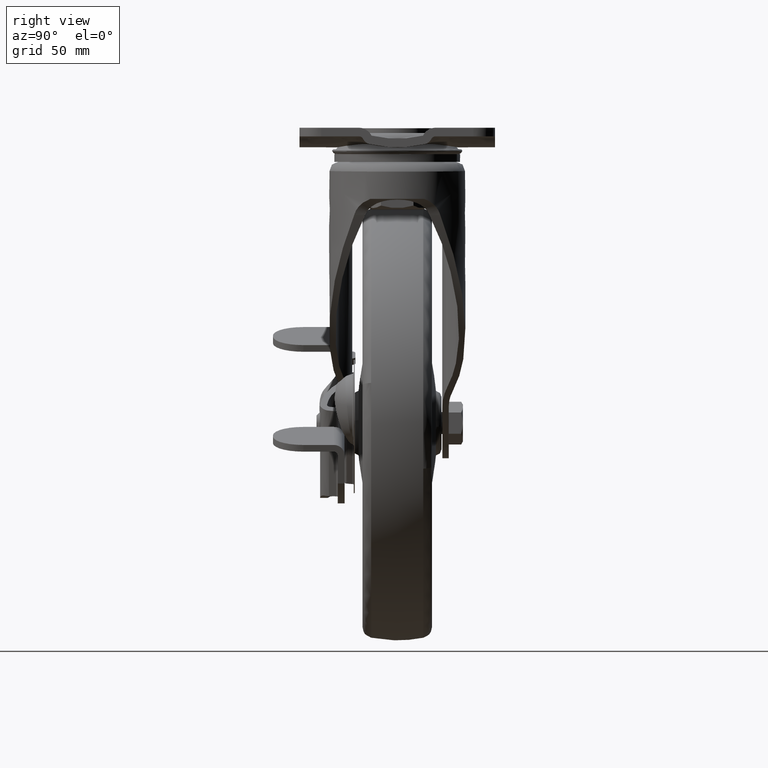
[diagram: clean part render]
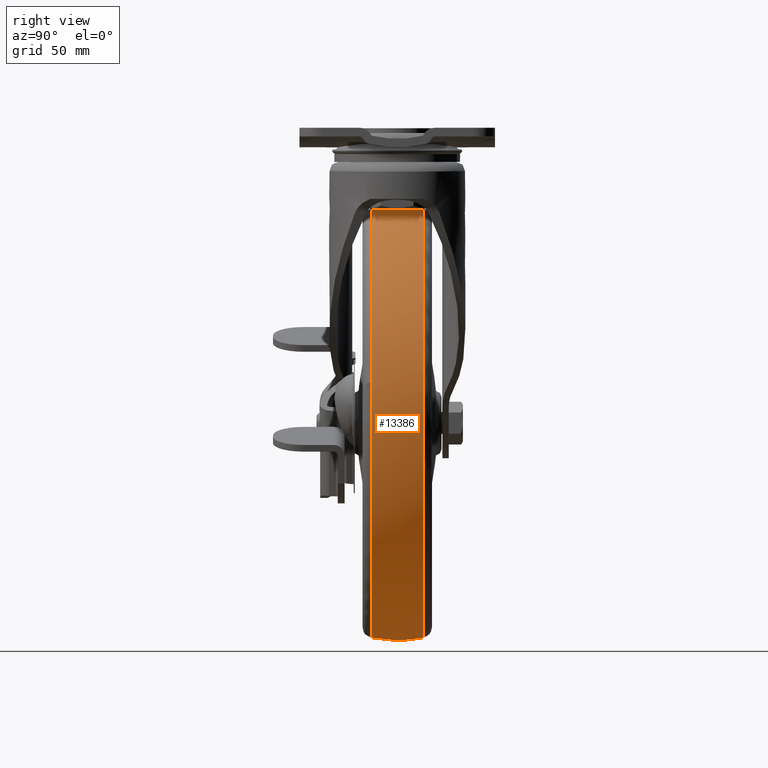
[diagram: same view with one face highlighted and labeled with its STEP entity id]
A machine part, right view. The second image highlights one B-rep face of the part: STEP entity #13386.
In plain terms, the highlighted face is a freeform B-spline surface patch.
Its self-contained STEP definition (entity closure, byte-faithful):
#13196=CARTESIAN_POINT('',(-52.999999999999993,-11.999999999992220,-36.941479173202183));
#13197=VERTEX_POINT('',#13196);
#13198=CARTESIAN_POINT('',(-53.0,12.000026845558001,-36.941484653043062));
#13199=VERTEX_POINT('',#13198);
#13200=CARTESIAN_POINT('',(-52.999999999999993,-11.999999999992221,-36.941479173202183));
#13201=CARTESIAN_POINT('',(-53.000000000000007,0.000013982066838,-34.491986576347706));
#13202=CARTESIAN_POINT('',(-52.999999999999993,12.000026845557995,-36.941484653043062));
#13210=(BOUNDED_CURVE()B_SPLINE_CURVE(2,(#13200,#13201,#13202),.UNSPECIFIED.,.F.,.U.)B_SPLINE_CURVE_WITH_KNOTS((3,3),(0.458261283577777,0.541738811722648),.UNSPECIFIED.)CURVE()GEOMETRIC_REPRESENTATION_ITEM()RATIONAL_B_SPLINE_CURVE((0.868829938584037,0.851275989073727,0.868829978664302))REPRESENTATION_ITEM(''));
#13211=EDGE_CURVE('',#13197,#13199,#13210,.T.);
#13228=CARTESIAN_POINT('',(-53.0,12.000026845734901,-234.516981346920800));
#13229=VERTEX_POINT('',#13228);
#13245=CARTESIAN_POINT('',(-53.0,-11.999999999996120,-234.516986826797110));
#13246=VERTEX_POINT('',#13245);
#13247=CARTESIAN_POINT('',(-52.999999999999993,-11.999999999996124,-234.516986826797020));
#13248=CARTESIAN_POINT('',(-52.999999999999993,0.000013982156945,-236.966479423671440));
#13249=CARTESIAN_POINT('',(-52.999999999999993,12.000026845734903,-234.516981346920740));
#13257=(BOUNDED_CURVE()B_SPLINE_CURVE(2,(#13247,#13248,#13249),.UNSPECIFIED.,.F.,.U.)B_SPLINE_CURVE_WITH_KNOTS((3,3),(0.458261283577763,0.541738811723276),.UNSPECIFIED.)CURVE()GEOMETRIC_REPRESENTATION_ITEM()RATIONAL_B_SPLINE_CURVE((0.868829938584042,0.851275989073592,0.868829978664566))REPRESENTATION_ITEM(''));
#13258=EDGE_CURVE('',#13246,#13229,#13257,.T.);
#13293=CARTESIAN_POINT('',(-55.754760473732482,-13.170890108535813,-234.265782725354260));
#13294=CARTESIAN_POINT('',(-55.837610005250582,0.000013145838055,-237.229273402673440));
#13295=CARTESIAN_POINT('',(-55.754760316317935,13.170915133298761,-234.265777094705870));
#13296=CARTESIAN_POINT('',(-54.385401754525802,-13.170890108535819,-234.265782725354170));
#13297=CARTESIAN_POINT('',(-54.427067767749556,0.000013145838055,-237.229273402673440));
#13298=CARTESIAN_POINT('',(-54.385401675360164,13.170915133298763,-234.265777094705920));
#13299=CARTESIAN_POINT('',(45.536549725354263,-13.170890108535817,-234.265782725354280));
#13300=CARTESIAN_POINT('',(48.500040402673392,0.000013145838055,-237.229273402673390));
#13301=CARTESIAN_POINT('',(45.536544094705839,13.170915133298761,-234.265777094705900));
#13302=CARTESIAN_POINT('',(45.536549725354234,-13.170890108535813,-135.729232999999940));
#13303=CARTESIAN_POINT('',(48.500040402673392,0.000013145838055,-135.729232999999970));
#13304=CARTESIAN_POINT('',(45.536544094705839,13.170915133298765,-135.729232999999970));
#13305=CARTESIAN_POINT('',(45.536549725354263,-13.170890108535817,-37.192683274645759));
#13306=CARTESIAN_POINT('',(48.500040402673392,0.000013145838055,-34.229192597326623));
#13307=CARTESIAN_POINT('',(45.536544094705839,13.170915133298761,-37.192688905294162));
#13308=CARTESIAN_POINT('',(-54.385401754525788,-13.170890108535819,-37.192683274645752));
#13309=CARTESIAN_POINT('',(-54.427067767749541,0.000013145838055,-34.229192597326602));
#13310=CARTESIAN_POINT('',(-54.385401675360150,13.170915133298765,-37.192688905294155));
#13311=CARTESIAN_POINT('',(-55.754760473732432,-13.170890108535815,-37.192683274645745));
#13312=CARTESIAN_POINT('',(-55.837610005250532,0.000013145838055,-34.229192597326602));
#13313=CARTESIAN_POINT('',(-55.754760316317885,13.170915133298763,-37.192688905294155));
#13321=(BOUNDED_SURFACE()B_SPLINE_SURFACE(2,2,((#13293,#13296,#13299,#13302,#13305,#13308,#13311),(#13294,#13297,#13300,#13303,#13306,#13309,#13312),(#13295,#13298,#13301,#13304,#13307,#13310,#13313)),.UNSPECIFIED.,.F.,.F.,.U.)B_SPLINE_SURFACE_WITH_KNOTS((3,3),(3,1,2,1,3),(0.0,26.667021365312898),(0.0,3.313708498984734,168.999133448220390,334.684558397456100,337.998266896440780),.UNSPECIFIED.)GEOMETRIC_REPRESENTATION_ITEM()RATIONAL_B_SPLINE_SURFACE(((0.880871720885511,0.875771447234334,0.615657491024300,0.870671173583157,0.615657491024300,0.875771447234334,0.880871720885511),(0.859386500599931,0.854410627017816,0.600641074329906,0.849434753435700,0.600641074329906,0.854410627017815,0.859386500599931),(0.880871762728126,0.875771488834679,0.615657520268875,0.870671214941232,0.615657520268875,0.875771488834679,0.880871762728126)))REPRESENTATION_ITEM('')SURFACE());
#13322=ORIENTED_EDGE('',*,*,#13211,.F.);
#13323=CARTESIAN_POINT('',(44.037951112125853,-12.000000000222460,-117.218253822893300));
#13324=VERTEX_POINT('',#13323);
#13325=CARTESIAN_POINT('',(44.037951112125853,-12.000000000222451,-117.218253822893290));
#13326=CARTESIAN_POINT('',(28.724337346453442,-12.000000000106548,-36.941479173206496));
#13327=CARTESIAN_POINT('',(-52.999999999999993,-11.999999999992220,-36.941479173202183));
#13335=(BOUNDED_CURVE()B_SPLINE_CURVE(2,(#13325,#13326,#13327),.UNSPECIFIED.,.F.,.U.)B_SPLINE_CURVE_WITH_KNOTS((3,3),(0.282161366259673,0.500000000000000),.UNSPECIFIED.)CURVE()GEOMETRIC_REPRESENTATION_ITEM()RATIONAL_B_SPLINE_CURVE((0.934335795159950,0.744786165527484,1.0))REPRESENTATION_ITEM(''));
#13336=EDGE_CURVE('',#13324,#13197,#13335,.T.);
#13337=ORIENTED_EDGE('',*,*,#13336,.F.);
#13338=CARTESIAN_POINT('',(-53.0,-11.999999999996120,-234.516986826797110));
#13339=CARTESIAN_POINT('',(45.787753826777475,-12.000000000090697,-234.516986826800690));
#13340=CARTESIAN_POINT('',(45.787753826754852,-12.000000000203070,-135.729233000007500));
#13341=CARTESIAN_POINT('',(45.787753826752720,-12.000000000213698,-126.391040883647550));
#13342=CARTESIAN_POINT('',(44.037951112125853,-12.000000000222451,-117.218253822893290));
#13350=(BOUNDED_CURVE()B_SPLINE_CURVE(2,(#13338,#13339,#13340,#13341,#13342),.UNSPECIFIED.,.F.,.U.)B_SPLINE_CURVE_WITH_KNOTS((3,2,3),(0.0,0.250000000000000,0.282161366259673),.UNSPECIFIED.)CURVE()GEOMETRIC_REPRESENTATION_ITEM()RATIONAL_B_SPLINE_CURVE((1.0,0.707106781186548,1.0,0.962320615659064,0.934335795159950))REPRESENTATION_ITEM(''));
#13351=EDGE_CURVE('',#13246,#13324,#13350,.T.);
#13352=ORIENTED_EDGE('',*,*,#13351,.F.);
#13353=ORIENTED_EDGE('',*,*,#13258,.T.);
#13354=CARTESIAN_POINT('',(43.542120118047769,12.000026333087000,-156.672938599710390));
#13355=VERTEX_POINT('',#13354);
#13356=CARTESIAN_POINT('',(-53.0,12.000026845734901,-234.516981346920800));
#13357=CARTESIAN_POINT('',(26.654747402316350,12.000026589445792,-234.516981080621120));
#13358=CARTESIAN_POINT('',(43.542120118047769,12.000026333086998,-156.672938599710420));
#13366=(BOUNDED_CURVE()B_SPLINE_CURVE(2,(#13356,#13357,#13358),.UNSPECIFIED.,.F.,.U.)B_SPLINE_CURVE_WITH_KNOTS((3,3),(0.0,0.213703256645220),.UNSPECIFIED.)CURVE()GEOMETRIC_REPRESENTATION_ITEM()RATIONAL_B_SPLINE_CURVE((1.0,0.749631061161057,0.927299383063633))REPRESENTATION_ITEM(''));
#13367=EDGE_CURVE('',#13229,#13355,#13366,.T.);
#13368=ORIENTED_EDGE('',*,*,#13367,.T.);
#13369=CARTESIAN_POINT('',(43.542120118047769,12.000026333086998,-156.672938599710420));
#13370=CARTESIAN_POINT('',(45.787751477853575,12.000026355235386,-146.321476358850990));
#13371=CARTESIAN_POINT('',(45.787751609472629,12.000026382705791,-135.729232518958900));
#13372=CARTESIAN_POINT('',(45.787752837007623,12.000026638906423,-36.941484438319748));
#13373=CARTESIAN_POINT('',(-53.0,12.000026845558001,-36.941484653043062));
#13381=(BOUNDED_CURVE()B_SPLINE_CURVE(2,(#13369,#13370,#13371,#13372,#13373),.UNSPECIFIED.,.F.,.U.)B_SPLINE_CURVE_WITH_KNOTS((3,2,3),(0.213703256645220,0.250000000000000,0.500000000000000),.UNSPECIFIED.)CURVE()GEOMETRIC_REPRESENTATION_ITEM()RATIONAL_B_SPLINE_CURVE((0.927299383063633,0.957475720025490,1.0,0.707106781186548,1.0))REPRESENTATION_ITEM(''));
#13382=EDGE_CURVE('',#13355,#13199,#13381,.T.);
#13383=ORIENTED_EDGE('',*,*,#13382,.T.);
#13384=EDGE_LOOP('',(#13322,#13337,#13352,#13353,#13368,#13383));
#13385=FACE_OUTER_BOUND('',#13384,.T.);
#13386=ADVANCED_FACE('',(#13385),#13321,.T.);